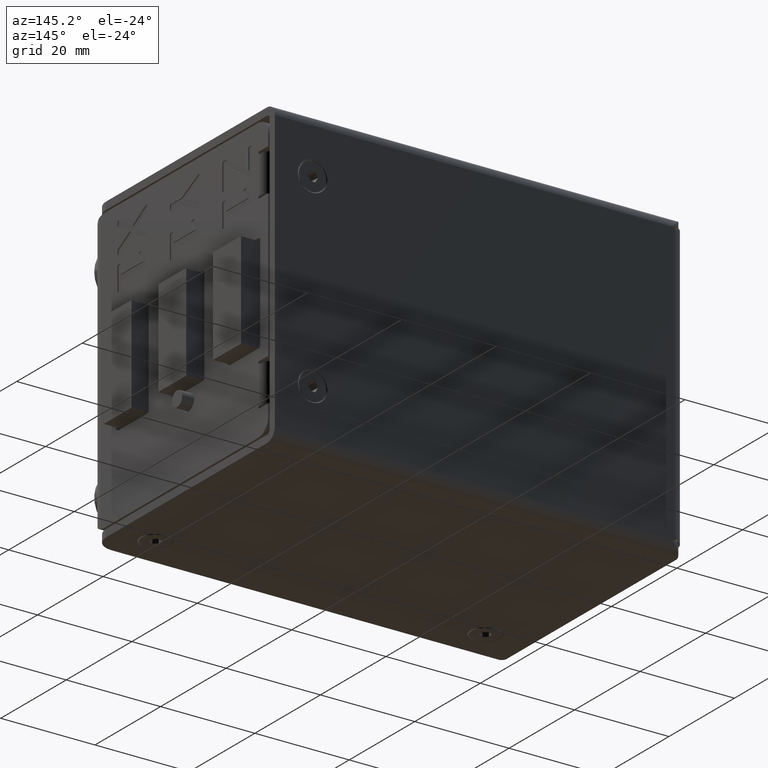
[diagram: clean part render]
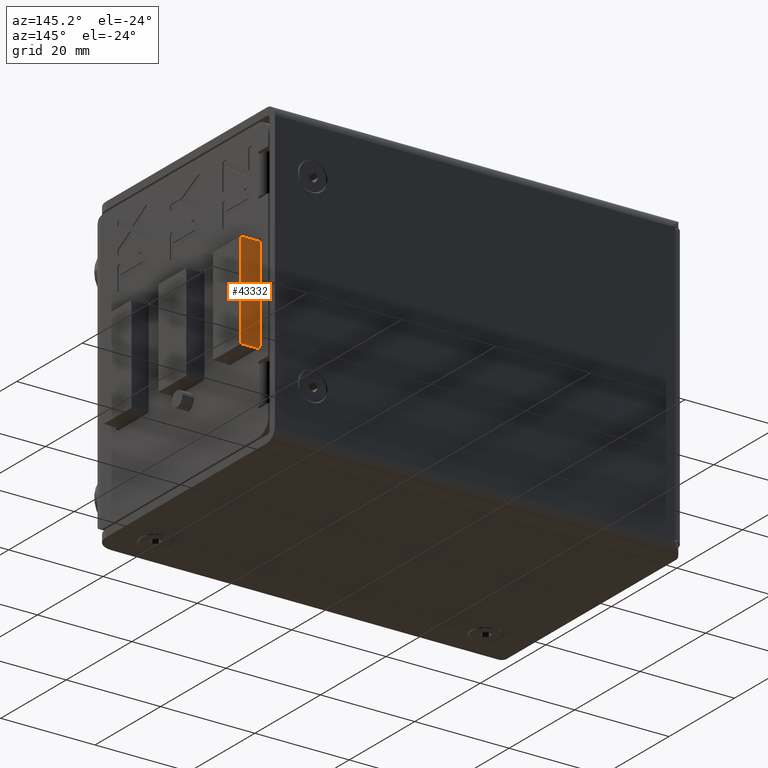
[diagram: same view with one face highlighted and labeled with its STEP entity id]
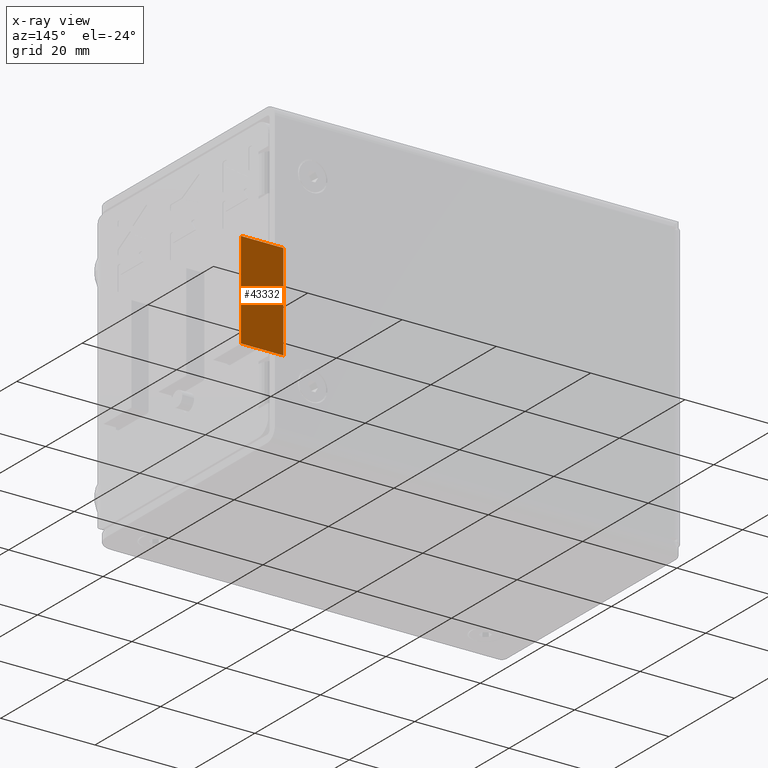
[diagram: x-ray of the same camera — body ghosted, the highlighted face saturated]
A machine part, auxiliary view. The second image highlights one B-rep face of the part: STEP entity #43332.
The next image is the same camera in x-ray: the body ghosted, the highlighted face saturated — about 0% of this face is hidden behind the body in this view.
In plain terms, the highlighted planar face has unit normal (-0, 1, 0).
Its self-contained STEP definition (entity closure, byte-faithful):
#128 = CARTESIAN_POINT ( 'NONE',  ( 41.19699846506279100, 36.77412546596318100, 7.650000000000123800 ) ) ;
#6105 = DIRECTION ( 'NONE',  ( -1.561251128379125200E-017, -6.083789481314336100E-018, 1.000000000000000000 ) ) ;
#7467 = ORIENTED_EDGE ( 'NONE', *, *, #41377, .F. ) ;
#7934 = EDGE_CURVE ( 'NONE', #67997, #18066, #35007, .T. ) ;
#18066 = VERTEX_POINT ( 'NONE', #60975 ) ;
#20140 = DIRECTION ( 'NONE',  ( -1.561251128379125200E-017, -6.083789481314336100E-018, 1.000000000000000000 ) ) ;
#21037 = DIRECTION ( 'NONE',  ( 1.000000000000000000, 9.051608351169257000E-018, 1.561251128379125200E-017 ) ) ;
#22337 = VERTEX_POINT ( 'NONE', #66389 ) ;
#24894 = VECTOR ( 'NONE', #6105, 1000.000000000000000 ) ;
#25531 = FACE_OUTER_BOUND ( 'NONE', #36950, .T. ) ;
#27428 = DIRECTION ( 'NONE',  ( 1.000000000000000000, 9.051608351169255500E-018, 1.561251128379124800E-017 ) ) ;
#31322 = CARTESIAN_POINT ( 'NONE',  ( 50.19699846506318200, 36.77412546596318100, 7.650000000000123800 ) ) ;
#33617 = VECTOR ( 'NONE', #27428, 1000.000000000000000 ) ;
#35007 = LINE ( 'NONE', #37450, #35811 ) ;
#35811 = VECTOR ( 'NONE', #43102, 1000.000000000000000 ) ;
#36950 = EDGE_LOOP ( 'NONE', ( #69579, #7467, #49771, #37968 ) ) ;
#37450 = CARTESIAN_POINT ( 'NONE',  ( 41.19699846506279100, 36.77412546596318100, -12.85000000000016700 ) ) ;
#37968 = ORIENTED_EDGE ( 'NONE', *, *, #50657, .T. ) ;
#38223 = LINE ( 'NONE', #31322, #56715 ) ;
#41377 = EDGE_CURVE ( 'NONE', #18066, #22337, #38223, .T. ) ;
#42609 = DIRECTION ( 'NONE',  ( -9.051608351169257000E-018, 1.000000000000000000, 6.083789481314589600E-018 ) ) ;
#43102 = DIRECTION ( 'NONE',  ( 1.000000000000000000, 9.051608351169255500E-018, 1.561251128379124800E-017 ) ) ;
#43332 = ADVANCED_FACE ( 'NONE', ( #25531 ), #52931, .T. ) ;
#47939 = CARTESIAN_POINT ( 'NONE',  ( 41.19699846506279100, 36.77412546596318100, -12.85000000000016700 ) ) ;
#49771 = ORIENTED_EDGE ( 'NONE', *, *, #7934, .F. ) ;
#50657 = EDGE_CURVE ( 'NONE', #67997, #67926, #57619, .T. ) ;
#52106 = LINE ( 'NONE', #69739, #33617 ) ;
#52931 = PLANE ( 'NONE',  #57209 ) ;
#53126 = CARTESIAN_POINT ( 'NONE',  ( 41.19699846506279100, 36.77412546596318100, 7.650000000000123800 ) ) ;
#53501 = CARTESIAN_POINT ( 'NONE',  ( 41.19699846506279100, 36.77412546596318100, 7.650000000000123800 ) ) ;
#56715 = VECTOR ( 'NONE', #20140, 1000.000000000000000 ) ;
#57209 = AXIS2_PLACEMENT_3D ( 'NONE', #128, #42609, #21037 ) ;
#57619 = LINE ( 'NONE', #53501, #24894 ) ;
#60975 = CARTESIAN_POINT ( 'NONE',  ( 50.19699846506318200, 36.77412546596318100, -12.85000000000019100 ) ) ;
#66120 = EDGE_CURVE ( 'NONE', #67926, #22337, #52106, .T. ) ;
#66389 = CARTESIAN_POINT ( 'NONE',  ( 50.19699846506318200, 36.77412546596318100, 7.650000000000123800 ) ) ;
#67926 = VERTEX_POINT ( 'NONE', #53126 ) ;
#67997 = VERTEX_POINT ( 'NONE', #47939 ) ;
#69579 = ORIENTED_EDGE ( 'NONE', *, *, #66120, .T. ) ;
#69739 = CARTESIAN_POINT ( 'NONE',  ( 41.19699846506279100, 36.77412546596318100, 7.650000000000123800 ) ) ;